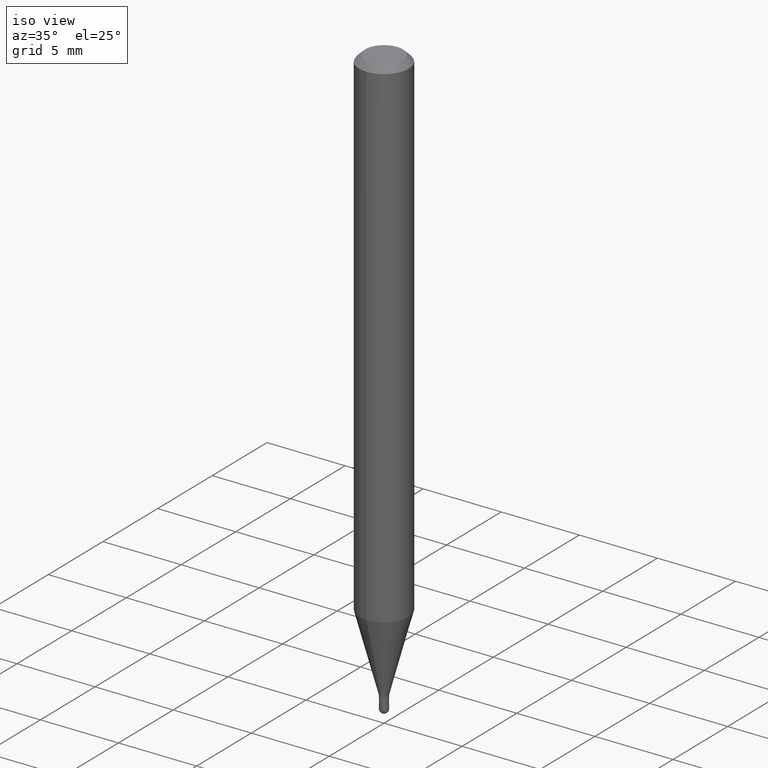
[diagram: clean part render]
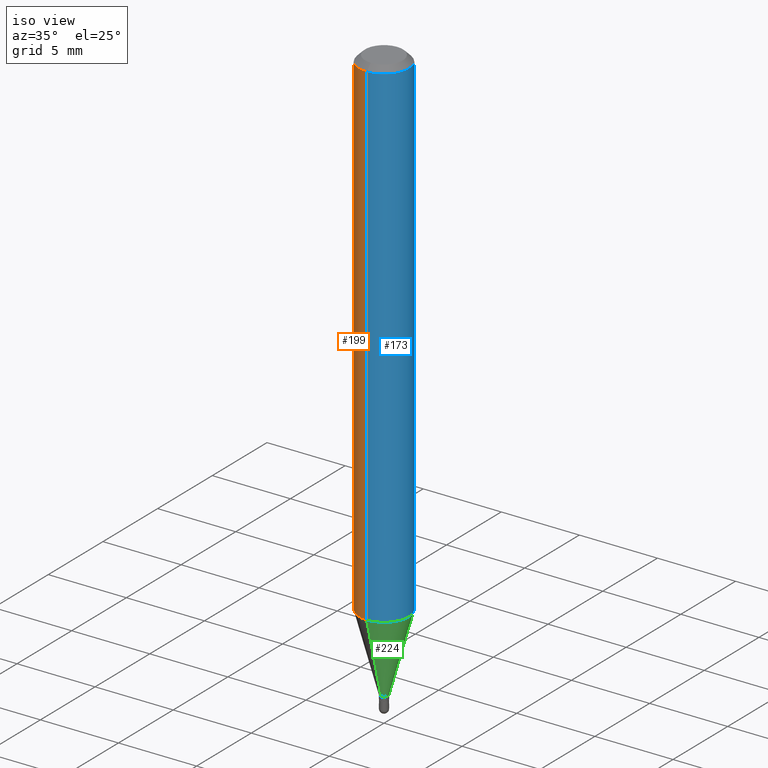
[diagram: same view with three faces highlighted in distinct colors, each labeled with its STEP entity id]
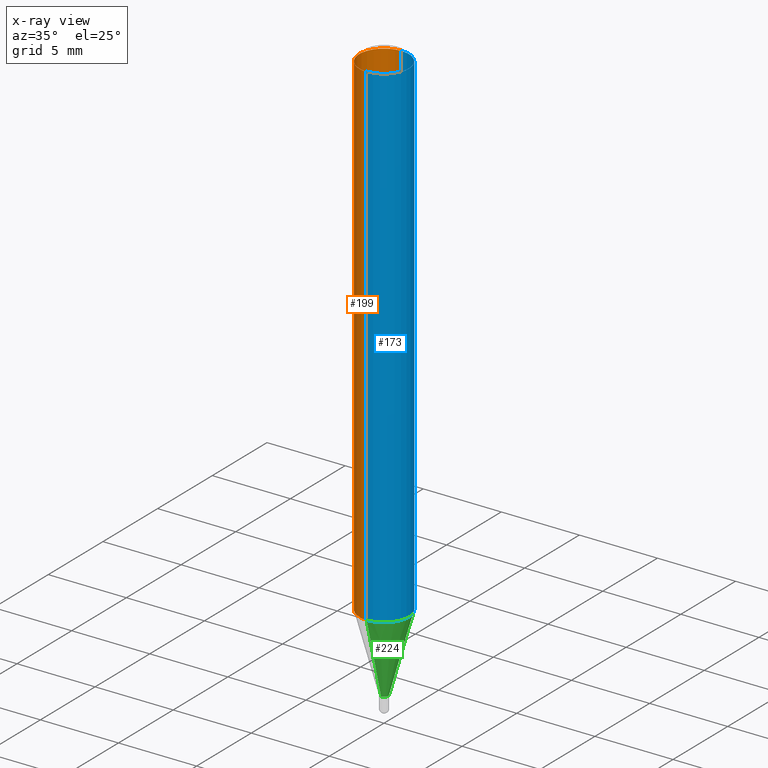
[diagram: x-ray of the same camera — body ghosted, the three highlighted faces saturated]
A machine part, iso view with three faces highlighted in distinct colors.
The next image is the same camera in x-ray (body ghosted, the three faces saturated) — at least one of them is partly hidden behind the body in this view.
Their STEP definitions:

[orange] entity #199 — the highlighted cylindrical surface (edge-blend (fillet) strip) has radius 1.5875 mm, axis along (-0, 0, 1).
#2 = DIRECTION ( 'NONE',  ( -2.445456902332758045E-29, 3.491498385837276780E-15, 1.000000000000000000 ) ) ;
#5 = AXIS2_PLACEMENT_3D ( 'NONE', #92, #249, #209 ) ;
#17 = CARTESIAN_POINT ( 'NONE',  ( 0.000000000000000000, 0.000000000000000000, 0.000000000000000000 ) ) ;
#42 = ORIENTED_EDGE ( 'NONE', *, *, #171, .T. ) ;
#67 = CARTESIAN_POINT ( 'NONE',  ( 4.440892098500932831E-16, 0.06249999999999556605, -1.263933358006419372 ) ) ;
#73 = EDGE_LOOP ( 'NONE', ( #377, #404, #42, #419 ) ) ;
#89 = DIRECTION ( 'NONE',  ( -2.445456902332758045E-29, 3.491498385837276780E-15, 1.000000000000000000 ) ) ;
#92 = CARTESIAN_POINT ( 'NONE',  ( 3.668185353499139818E-31, -5.237247578755917907E-17, -0.01500000000000000812 ) ) ;
#108 = CIRCLE ( 'NONE', #5, 0.06250000000000000000 ) ;
#126 = VERTEX_POINT ( 'NONE', #166 ) ;
#136 = EDGE_CURVE ( 'NONE', #383, #169, #278, .T. ) ;
#153 = CARTESIAN_POINT ( 'NONE',  ( 4.440892098500625669E-16, 0.06250000000000000000, -2.182186491148297741E-16 ) ) ;
#159 = VECTOR ( 'NONE', #89, 39.37007874015748143 ) ;
#166 = CARTESIAN_POINT ( 'NONE',  ( 4.440892098500936776E-16, 0.06249999999999993755, -0.01500000000000022669 ) ) ;
#169 = VERTEX_POINT ( 'NONE', #342 ) ;
#171 = EDGE_CURVE ( 'NONE', #169, #422, #203, .T. ) ;
#186 = EDGE_CURVE ( 'NONE', #126, #422, #108, .T. ) ;
#195 = LINE ( 'NONE', #153, #339 ) ;
#199 = ADVANCED_FACE ( 'NONE', ( #376 ), #416, .T. ) ;
#202 = DIRECTION ( 'NONE',  ( -2.445456902332758326E-29, 3.491498385837276386E-15, 1.000000000000000000 ) ) ;
#203 = LINE ( 'NONE', #259, #159 ) ;
#209 = DIRECTION ( 'NONE',  ( -6.982962677686265922E-15, -1.000000000000000000, 3.483106191921935554E-15 ) ) ;
#249 = DIRECTION ( 'NONE',  ( -2.445456902332758326E-29, 3.491498385837276386E-15, 1.000000000000000000 ) ) ;
#259 = CARTESIAN_POINT ( 'NONE',  ( -4.364351673553916201E-16, -0.06250000000000000000, 2.182186491148297741E-16 ) ) ;
#260 = AXIS2_PLACEMENT_3D ( 'NONE', #17, #489, #289 ) ;
#278 = CIRCLE ( 'NONE', #358, 0.06250000000000000000 ) ;
#289 = DIRECTION ( 'NONE',  ( -6.982962677686265922E-15, -1.000000000000000000, 3.491498385837276386E-15 ) ) ;
#339 = VECTOR ( 'NONE', #2, 39.37007874015748143 ) ;
#342 = CARTESIAN_POINT ( 'NONE',  ( -4.364351673553607559E-16, -0.06250000000000441314, -1.263933358006418706 ) ) ;
#358 = AXIS2_PLACEMENT_3D ( 'NONE', #453, #202, #411 ) ;
#376 = FACE_OUTER_BOUND ( 'NONE', #73, .T. ) ;
#377 = ORIENTED_EDGE ( 'NONE', *, *, #470, .F. ) ;
#383 = VERTEX_POINT ( 'NONE', #67 ) ;
#404 = ORIENTED_EDGE ( 'NONE', *, *, #136, .T. ) ;
#411 = DIRECTION ( 'NONE',  ( -6.982962677686265922E-15, -1.000000000000000000, 4.370956789862821150E-15 ) ) ;
#416 = CYLINDRICAL_SURFACE ( 'NONE', #260, 0.06250000000000000000 ) ;
#419 = ORIENTED_EDGE ( 'NONE', *, *, #186, .F. ) ;
#422 = VERTEX_POINT ( 'NONE', #505 ) ;
#453 = CARTESIAN_POINT ( 'NONE',  ( 3.090894554425418435E-29, -4.413021279285300535E-15, -1.263933358006419150 ) ) ;
#470 = EDGE_CURVE ( 'NONE', #383, #126, #195, .T. ) ;
#489 = DIRECTION ( 'NONE',  ( -2.445456902332758326E-29, 3.491498385837276386E-15, 1.000000000000000000 ) ) ;
#505 = CARTESIAN_POINT ( 'NONE',  ( -4.364351673553912750E-16, -0.06250000000000005551, -0.01499999999999979128 ) ) ;

[blue] entity #173 — the highlighted cylindrical surface (edge-blend (fillet) strip) has radius 1.5875 mm, axis along (-0, 0, 1).
#2 = DIRECTION ( 'NONE',  ( -2.445456902332758045E-29, 3.491498385837276780E-15, 1.000000000000000000 ) ) ;
#60 = CYLINDRICAL_SURFACE ( 'NONE', #492, 0.06250000000000000000 ) ;
#67 = CARTESIAN_POINT ( 'NONE',  ( 4.440892098500932831E-16, 0.06249999999999556605, -1.263933358006419372 ) ) ;
#89 = DIRECTION ( 'NONE',  ( -2.445456902332758045E-29, 3.491498385837276780E-15, 1.000000000000000000 ) ) ;
#98 = DIRECTION ( 'NONE',  ( -6.982962677686265922E-15, -1.000000000000000000, 3.483106191921935554E-15 ) ) ;
#123 = FACE_OUTER_BOUND ( 'NONE', #272, .T. ) ;
#125 = DIRECTION ( 'NONE',  ( -2.445456902332758326E-29, 3.491498385837276386E-15, 1.000000000000000000 ) ) ;
#126 = VERTEX_POINT ( 'NONE', #166 ) ;
#133 = EDGE_CURVE ( 'NONE', #422, #126, #248, .T. ) ;
#142 = EDGE_CURVE ( 'NONE', #169, #383, #348, .T. ) ;
#153 = CARTESIAN_POINT ( 'NONE',  ( 4.440892098500625669E-16, 0.06250000000000000000, -2.182186491148297741E-16 ) ) ;
#159 = VECTOR ( 'NONE', #89, 39.37007874015748143 ) ;
#162 = CARTESIAN_POINT ( 'NONE',  ( 3.090894554425418435E-29, -4.413021279285300535E-15, -1.263933358006419150 ) ) ;
#166 = CARTESIAN_POINT ( 'NONE',  ( 4.440892098500936776E-16, 0.06249999999999993755, -0.01500000000000022669 ) ) ;
#169 = VERTEX_POINT ( 'NONE', #342 ) ;
#171 = EDGE_CURVE ( 'NONE', #169, #422, #203, .T. ) ;
#173 = ADVANCED_FACE ( 'NONE', ( #123 ), #60, .T. ) ;
#179 = ORIENTED_EDGE ( 'NONE', *, *, #470, .T. ) ;
#195 = LINE ( 'NONE', #153, #339 ) ;
#201 = AXIS2_PLACEMENT_3D ( 'NONE', #332, #445, #98 ) ;
#203 = LINE ( 'NONE', #259, #159 ) ;
#205 = CARTESIAN_POINT ( 'NONE',  ( 0.000000000000000000, 0.000000000000000000, 0.000000000000000000 ) ) ;
#215 = ORIENTED_EDGE ( 'NONE', *, *, #142, .T. ) ;
#248 = CIRCLE ( 'NONE', #201, 0.06250000000000000000 ) ;
#259 = CARTESIAN_POINT ( 'NONE',  ( -4.364351673553916201E-16, -0.06250000000000000000, 2.182186491148297741E-16 ) ) ;
#272 = EDGE_LOOP ( 'NONE', ( #215, #179, #349, #449 ) ) ;
#332 = CARTESIAN_POINT ( 'NONE',  ( 3.668185353499139818E-31, -5.237247578755917907E-17, -0.01500000000000000812 ) ) ;
#339 = VECTOR ( 'NONE', #2, 39.37007874015748143 ) ;
#342 = CARTESIAN_POINT ( 'NONE',  ( -4.364351673553607559E-16, -0.06250000000000441314, -1.263933358006418706 ) ) ;
#348 = CIRCLE ( 'NONE', #374, 0.06250000000000000000 ) ;
#349 = ORIENTED_EDGE ( 'NONE', *, *, #133, .F. ) ;
#374 = AXIS2_PLACEMENT_3D ( 'NONE', #162, #490, #409 ) ;
#383 = VERTEX_POINT ( 'NONE', #67 ) ;
#409 = DIRECTION ( 'NONE',  ( -6.982962677686265922E-15, -1.000000000000000000, 4.370956789862821150E-15 ) ) ;
#422 = VERTEX_POINT ( 'NONE', #505 ) ;
#445 = DIRECTION ( 'NONE',  ( -2.445456902332758326E-29, 3.491498385837276386E-15, 1.000000000000000000 ) ) ;
#447 = DIRECTION ( 'NONE',  ( -6.982962677686265922E-15, -1.000000000000000000, 3.491498385837276386E-15 ) ) ;
#449 = ORIENTED_EDGE ( 'NONE', *, *, #171, .F. ) ;
#470 = EDGE_CURVE ( 'NONE', #383, #126, #195, .T. ) ;
#490 = DIRECTION ( 'NONE',  ( -2.445456902332758326E-29, 3.491498385837276386E-15, 1.000000000000000000 ) ) ;
#492 = AXIS2_PLACEMENT_3D ( 'NONE', #205, #125, #447 ) ;
#505 = CARTESIAN_POINT ( 'NONE',  ( -4.364351673553912750E-16, -0.06250000000000005551, -0.01499999999999979128 ) ) ;

[green] entity #224 — the highlighted conical surface has half-angle 15 deg.
#39 = CARTESIAN_POINT ( 'NONE',  ( -7.332110811566961097E-17, -0.01050000000000501574, -1.458000000000000185 ) ) ;
#67 = CARTESIAN_POINT ( 'NONE',  ( 4.440892098500932831E-16, 0.06249999999999556605, -1.263933358006419372 ) ) ;
#80 = DIRECTION ( 'NONE',  ( -1.807323732225331323E-15, -0.2588190451025183525, 0.9659258262890689783 ) ) ;
#93 = ORIENTED_EDGE ( 'NONE', *, *, #232, .T. ) ;
#114 = LINE ( 'NONE', #39, #194 ) ;
#120 = VECTOR ( 'NONE', #461, 39.37007874015748854 ) ;
#142 = EDGE_CURVE ( 'NONE', #169, #383, #348, .T. ) ;
#145 = DIRECTION ( 'NONE',  ( -6.982962677686266711E-15, -1.000000000000000000, 0.000000000000000000 ) ) ;
#147 = DIRECTION ( 'NONE',  ( -6.982962677686266711E-15, -1.000000000000000000, 0.000000000000000000 ) ) ;
#162 = CARTESIAN_POINT ( 'NONE',  ( 3.090894554425418435E-29, -4.413021279285300535E-15, -1.263933358006419150 ) ) ;
#169 = VERTEX_POINT ( 'NONE', #342 ) ;
#177 = CARTESIAN_POINT ( 'NONE',  ( 3.565476163601162560E-29, -5.090604646550748565E-15, -1.458000000000000185 ) ) ;
#194 = VECTOR ( 'NONE', #80, 39.37007874015748854 ) ;
#206 = EDGE_LOOP ( 'NONE', ( #226, #93, #438, #424 ) ) ;
#224 = ADVANCED_FACE ( 'NONE', ( #330 ), #457, .T. ) ;
#226 = ORIENTED_EDGE ( 'NONE', *, *, #325, .T. ) ;
#232 = EDGE_CURVE ( 'NONE', #504, #383, #467, .T. ) ;
#236 = CARTESIAN_POINT ( 'NONE',  ( 2.593480985524697824E-16, 0.01049999999999483465, -1.458000000000000185 ) ) ;
#250 = VERTEX_POINT ( 'NONE', #357 ) ;
#273 = CARTESIAN_POINT ( 'NONE',  ( 3.565476163601162560E-29, -5.090604646550748565E-15, -1.458000000000000185 ) ) ;
#312 = CARTESIAN_POINT ( 'NONE',  ( 7.460698725484561614E-17, 0.01049999999999483465, -1.458000000000000185 ) ) ;
#325 = EDGE_CURVE ( 'NONE', #250, #504, #435, .T. ) ;
#330 = FACE_OUTER_BOUND ( 'NONE', #206, .T. ) ;
#342 = CARTESIAN_POINT ( 'NONE',  ( -4.364351673553607559E-16, -0.06250000000000441314, -1.263933358006418706 ) ) ;
#347 = DIRECTION ( 'NONE',  ( -2.445456902332758326E-29, 3.491498385837276386E-15, 1.000000000000000000 ) ) ;
#348 = CIRCLE ( 'NONE', #374, 0.06250000000000000000 ) ;
#357 = CARTESIAN_POINT ( 'NONE',  ( -7.332110811566961097E-17, -0.01050000000000501574, -1.458000000000000185 ) ) ;
#374 = AXIS2_PLACEMENT_3D ( 'NONE', #162, #490, #409 ) ;
#380 = AXIS2_PLACEMENT_3D ( 'NONE', #177, #347, #147 ) ;
#383 = VERTEX_POINT ( 'NONE', #67 ) ;
#409 = DIRECTION ( 'NONE',  ( -6.982962677686265922E-15, -1.000000000000000000, 4.370956789862821150E-15 ) ) ;
#424 = ORIENTED_EDGE ( 'NONE', *, *, #440, .F. ) ;
#425 = AXIS2_PLACEMENT_3D ( 'NONE', #273, #503, #145 ) ;
#435 = CIRCLE ( 'NONE', #425, 0.01049999999999992432 ) ;
#438 = ORIENTED_EDGE ( 'NONE', *, *, #142, .F. ) ;
#440 = EDGE_CURVE ( 'NONE', #250, #169, #114, .T. ) ;
#457 = CONICAL_SURFACE ( 'NONE', #380, 0.01049999999999992432, 0.2617993877991504625 ) ;
#461 = DIRECTION ( 'NONE',  ( 1.839019923739601499E-15, 0.2588190451025251249, 0.9659258262890670910 ) ) ;
#467 = LINE ( 'NONE', #312, #120 ) ;
#490 = DIRECTION ( 'NONE',  ( -2.445456902332758326E-29, 3.491498385837276386E-15, 1.000000000000000000 ) ) ;
#503 = DIRECTION ( 'NONE',  ( -2.445456902332758326E-29, 3.491498385837276386E-15, 1.000000000000000000 ) ) ;
#504 = VERTEX_POINT ( 'NONE', #236 ) ;